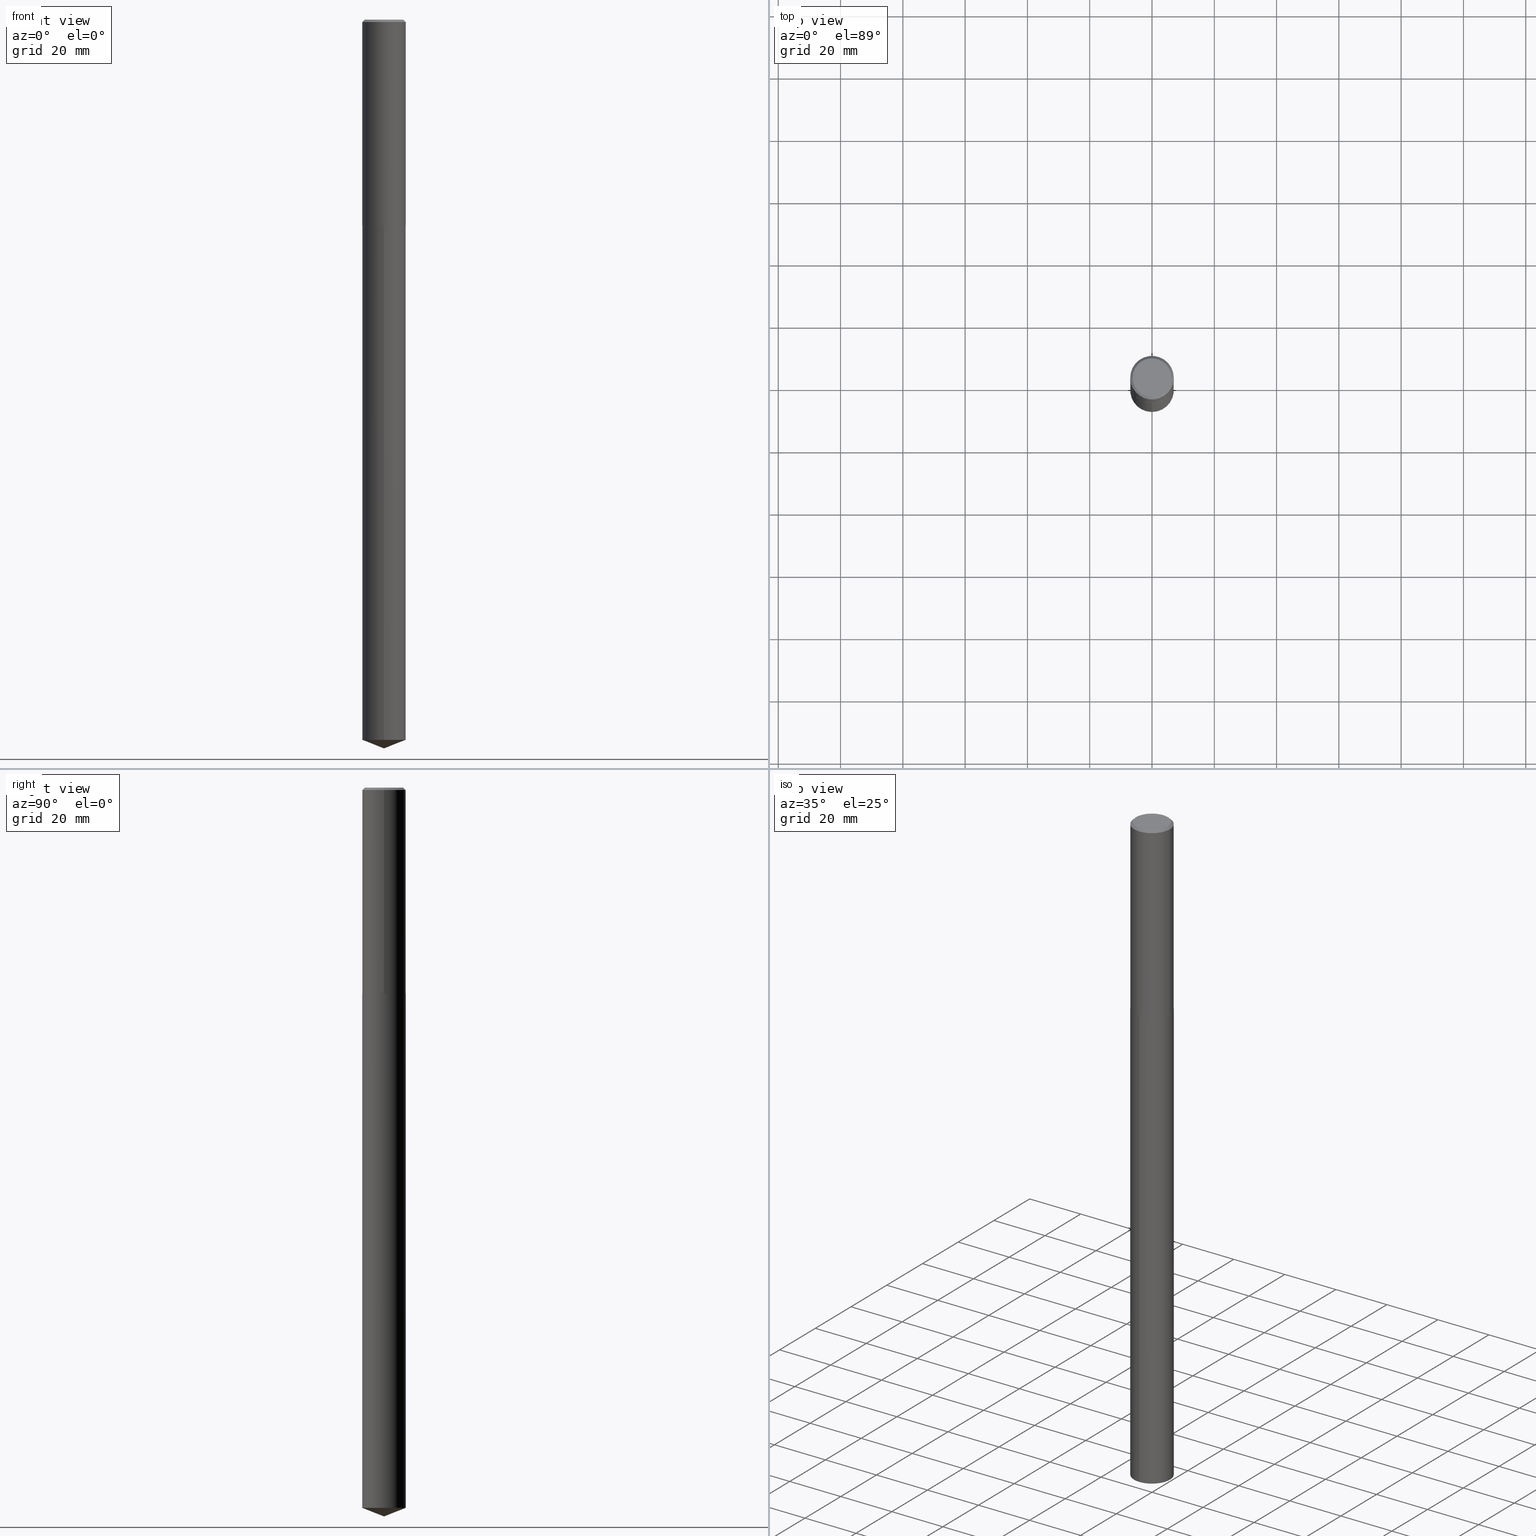
[diagram: canonical four-view strip — front | top / right | iso, engineering-drawing reading convention]
A machine part, canonical four-view strip (front | top / right | iso — engineering-drawing reading convention). The complete STEP part file that produces these views, byte-faithful:
ISO-10303-21;
HEADER;
FILE_DESCRIPTION (( 'STEP AP203' ),
    '1' );
FILE_NAME ('66805.STEP',
    '2024-04-23T12:51:53',
    ( '' ),
    ( '' ),
    'SwSTEP 2.0',
    'SolidWorks 2023',
    '' );
FILE_SCHEMA (( 'CONFIG_CONTROL_DESIGN' ));
ENDSEC;

DATA;
#1 = DIRECTION ( 'NONE',  ( 1.000000000000000000, -6.982962677686265922E-15, 0.000000000000000000 ) ) ;
#2 = DIRECTION ( 'NONE',  ( 1.000000000000000000, -6.982962677686265922E-15, 0.000000000000000000 ) ) ;
#3 = VERTEX_POINT ( 'NONE', #264 ) ;
#4 = CIRCLE ( 'NONE', #383, 0.2756000000000002892 ) ;
#5 = ORIENTED_EDGE ( 'NONE', *, *, #7, .F. ) ;
#6 = EDGE_CURVE ( 'NONE', #308, #381, #90, .T. ) ;
#7 = EDGE_CURVE ( 'NONE', #189, #349, #224, .T. ) ;
#8 = CYLINDRICAL_SURFACE ( 'NONE', #78, 0.2756000000000000116 ) ;
#9 = CARTESIAN_POINT ( 'NONE',  ( 6.355528880394550316E-29, -9.074010851519450181E-15, -2.598899999999999544 ) ) ;
#10 = CARTESIAN_POINT ( 'NONE',  ( 1.958255779754899698E-15, 0.2755999999999909633, -2.598900000000000432 ) ) ;
#11 = VERTEX_POINT ( 'NONE', #324 ) ;
#12 = DIRECTION ( 'NONE',  ( -6.982962677686265922E-15, -1.000000000000000000, 3.498627837350045243E-15 ) ) ;
#13 = CIRCLE ( 'NONE', #56, 0.2756000000000000116 ) ;
#14 = CARTESIAN_POINT ( 'NONE',  ( -0.2756000000000002892, -7.114009331095189722E-15, -2.598399999999999377 ) ) ;
#15 = EDGE_CURVE ( 'NONE', #308, #46, #214, .T. ) ;
#16 = ORIENTED_EDGE ( 'NONE', *, *, #212, .T. ) ;
#17 = ORIENTED_EDGE ( 'NONE', *, *, #71, .T. ) ;
#18 = PERSON_AND_ORGANIZATION_ROLE ( 'creator' ) ;
#19 = EDGE_LOOP ( 'NONE', ( #263, #327, #123, #91 ) ) ;
#20 = COORDINATED_UNIVERSAL_TIME_OFFSET ( 5, 0, .BEHIND. ) ;
#21 = ORIENTED_EDGE ( 'NONE', *, *, #217, .T. ) ;
#22 = DATE_TIME_ROLE ( 'classification_date' ) ;
#23 = VERTEX_POINT ( 'NONE', #293 ) ;
#24 = CALENDAR_DATE ( 2024, 23, 4 ) ;
#25 = AXIS2_PLACEMENT_3D ( 'NONE', #315, #152, #277 ) ;
#26 = CARTESIAN_POINT ( 'NONE',  ( 6.355528880394550316E-29, -9.074010851519450181E-15, -2.598899999999999544 ) ) ;
#27 = EDGE_CURVE ( 'NONE', #67, #11, #4, .T. ) ;
#28 = DIRECTION ( 'NONE',  ( 0.000000000000000000, 0.000000000000000000, 1.000000000000000000 ) ) ;
#29 = APPROVAL_ROLE ( '' ) ;
#30 = LINE ( 'NONE', #77, #96 ) ;
#31 = DIRECTION ( 'NONE',  ( 1.000000000000000000, -6.982962677686268288E-15, 0.000000000000000000 ) ) ;
#32 = CYLINDRICAL_SURFACE ( 'NONE', #390, 0.2756000000000001782 ) ;
#33 = DIRECTION ( 'NONE',  ( -2.445206291822063677E-29, 3.491857274352455641E-15, 1.000000000000000000 ) ) ;
#34 = DIRECTION ( 'NONE',  ( -2.445206291822063677E-29, 3.491857274352455641E-15, 1.000000000000000000 ) ) ;
#35 = CIRCLE ( 'NONE', #47, 0.2756000000000000116 ) ;
#36 = DIRECTION ( 'NONE',  ( 1.000000000000000000, -6.982962677686265922E-15, 4.876176775795935793E-29 ) ) ;
#37 = DIRECTION ( 'NONE',  ( 1.000000000000000000, -6.982962677686267499E-15, 0.000000000000000000 ) ) ;
#38 = PLANE ( 'NONE',  #251 ) ;
#39 = CARTESIAN_POINT ( 'NONE',  ( -1.179965205088274773E-46, 1.684677589683407840E-32, 4.825108388640571583E-18 ) ) ;
#40 = DIRECTION ( 'NONE',  ( -2.445206291822063677E-29, 3.491857274352455641E-15, 1.000000000000000000 ) ) ;
#41 = AXIS2_PLACEMENT_3D ( 'NONE', #140, #208, #36 ) ;
#42 = AXIS2_PLACEMENT_3D ( 'NONE', #87, #344, #31 ) ;
#43 = CARTESIAN_POINT ( 'NONE',  ( -0.2756000000000000116, 1.815395722131486248E-15, -0.03125000000000021511 ) ) ;
#44 = PRODUCT_DEFINITION_SHAPE ( 'NONE', 'NONE',  #325 ) ;
#45 = ORIENTED_EDGE ( 'NONE', *, *, #51, .F. ) ;
#46 = VERTEX_POINT ( 'NONE', #83 ) ;
#47 = AXIS2_PLACEMENT_3D ( 'NONE', #112, #210, #37 ) ;
#48 = CARTESIAN_POINT ( 'NONE',  ( -1.179965205088274773E-46, 1.684677589683407840E-32, 4.825108388640571583E-18 ) ) ;
#49 = DATE_AND_TIME ( #388, #69 ) ;
#50 = EDGE_LOOP ( 'NONE', ( #125, #205 ) ) ;
#51 = EDGE_CURVE ( 'NONE', #11, #381, #58, .T. ) ;
#52 = PERSON_AND_ORGANIZATION ( #200, #144 ) ;
#53 = FACE_OUTER_BOUND ( 'NONE', #19, .T. ) ;
#54 = FACE_OUTER_BOUND ( 'NONE', #147, .T. ) ;
#55 = DIRECTION ( 'NONE',  ( -1.000000000000000000, 6.982962677686267499E-15, 0.000000000000000000 ) ) ;
#56 = AXIS2_PLACEMENT_3D ( 'NONE', #209, #340, #280 ) ;
#57 = CARTESIAN_POINT ( 'NONE',  ( 6.354306145991456393E-29, -9.072265110850027889E-15, -2.598399999999999377 ) ) ;
#58 = LINE ( 'NONE', #197, #378 ) ;
#59 = ADVANCED_FACE ( 'NONE', ( #229 ), #32, .T. ) ;
#60 = EDGE_CURVE ( 'NONE', #23, #350, #226, .T. ) ;
#61 = DIRECTION ( 'NONE',  ( 2.438088387897960049E-29, -3.491481338843145188E-15, -1.000000000000000000 ) ) ;
#62 = DIRECTION ( 'NONE',  ( 1.000000000000000000, -6.982962677686266711E-15, 4.876118653798672988E-29 ) ) ;
#63 = VECTOR ( 'NONE', #118, 39.37007874015748143 ) ;
#64 = EDGE_LOOP ( 'NONE', ( #225, #310, #380, #21 ) ) ;
#65 = EDGE_CURVE ( 'NONE', #349, #321, #161, .T. ) ;
#66 = EDGE_LOOP ( 'NONE', ( #278, #355, #286, #295 ) ) ;
#67 = VERTEX_POINT ( 'NONE', #135 ) ;
#68 = AXIS2_PLACEMENT_3D ( 'NONE', #248, #370, #183 ) ;
#69 = LOCAL_TIME ( 8, 51, 53.00000000000000000, #109 ) ;
#70 = ORIENTED_EDGE ( 'NONE', *, *, #273, .T. ) ;
#71 = EDGE_CURVE ( 'NONE', #93, #189, #231, .T. ) ;
#72 = CARTESIAN_POINT ( 'NONE',  ( 1.958255779755059048E-15, 0.2755999999999682593, -9.104438272920521769 ) ) ;
#73 =( NAMED_UNIT ( * ) SI_UNIT ( $, .STERADIAN. ) SOLID_ANGLE_UNIT ( ) );
#74 = CALENDAR_DATE ( 2024, 23, 4 ) ;
#75 = AXIS2_PLACEMENT_3D ( 'NONE', #177, #40, #12 ) ;
#76 = PERSON_AND_ORGANIZATION ( #200, #144 ) ;
#77 = CARTESIAN_POINT ( 'NONE',  ( 0.2756000000000001782, -1.924504513970336137E-15, 1.343874319409360828E-29 ) ) ;
#78 = AXIS2_PLACEMENT_3D ( 'NONE', #375, #108, #89 ) ;
#79 = APPROVAL_PERSON_ORGANIZATION ( #301, #122, #29 ) ;
#80 = EDGE_CURVE ( 'NONE', #3, #381, #35, .T. ) ;
#81 = DIRECTION ( 'NONE',  ( 2.445468806185136597E-29, -3.491481338843145583E-15, -1.000000000000000000 ) ) ;
#82 = CARTESIAN_POINT ( 'NONE',  ( 7.642090019328603538E-31, -1.091087918388490390E-16, -0.03125000000000021511 ) ) ;
#83 = CARTESIAN_POINT ( 'NONE',  ( 0.2443500000000000116, -1.838112362890078477E-15, 4.825108388652965328E-18 ) ) ;
#84 = FACE_OUTER_BOUND ( 'NONE', #165, .T. ) ;
#85 = CARTESIAN_POINT ( 'NONE',  ( 2.252768556655667093E-28, -3.217048106860917540E-14, -9.212999999999999190 ) ) ;
#86 = AXIS2_PLACEMENT_3D ( 'NONE', #360, #352, #192 ) ;
#87 = CARTESIAN_POINT ( 'NONE',  ( 6.355528880394549195E-29, -9.074010851519448604E-15, -2.598899999999999100 ) ) ;
#88 = ORIENTED_EDGE ( 'NONE', *, *, #247, .F. ) ;
#89 = DIRECTION ( 'NONE',  ( -6.982962677686265922E-15, -1.000000000000000000, 3.964946289788480896E-15 ) ) ;
#90 = LINE ( 'NONE', #43, #330 ) ;
#91 = ORIENTED_EDGE ( 'NONE', *, *, #273, .F. ) ;
#92 = VERTEX_POINT ( 'NONE', #72 ) ;
#93 = VERTEX_POINT ( 'NONE', #85 ) ;
#94 = ORIENTED_EDGE ( 'NONE', *, *, #362, .T. ) ;
#95 = ADVANCED_FACE ( 'NONE', ( #184 ), #357, .T. ) ;
#96 = VECTOR ( 'NONE', #385, 39.37007874015748143 ) ;
#97 = APPLICATION_CONTEXT ( 'configuration controlled 3d designs of mechanical parts and assemblies' ) ;
#98 =( NAMED_UNIT ( * ) PLANE_ANGLE_UNIT ( ) SI_UNIT ( $, .RADIAN. ) );
#99 = CARTESIAN_POINT ( 'NONE',  ( 0.000000000000000000, 0.000000000000000000, 0.000000000000000000 ) ) ;
#100 = APPLICATION_PROTOCOL_DEFINITION ( 'international standard', 'config_control_design', 1994, #97 ) ;
#101 = ADVANCED_FACE ( 'NONE', ( #305 ), #336, .F. ) ;
#102 = DATE_AND_TIME ( #389, #252 ) ;
#103 = APPROVAL_PERSON_ORGANIZATION ( #328, #230, #223 ) ;
#104 = DIRECTION ( 'NONE',  ( 1.000000000000000000, 0.000000000000000000, 0.000000000000000000 ) ) ;
#105 = DIRECTION ( 'NONE',  ( -6.982962677686265922E-15, -1.000000000000000000, 3.964946289788480896E-15 ) ) ;
#106 = APPROVAL ( #232, 'UNSPECIFIED' ) ;
#107 = ADVANCED_FACE ( 'NONE', ( #84 ), #38, .F. ) ;
#108 = DIRECTION ( 'NONE',  ( -2.445206291822063677E-29, 3.491857274352455641E-15, 1.000000000000000000 ) ) ;
#109 = COORDINATED_UNIVERSAL_TIME_OFFSET ( 5, 0, .BEHIND. ) ;
#110 = CARTESIAN_POINT ( 'NONE',  ( 6.354306145991456393E-29, -9.072265110850027889E-15, -2.598399999999999377 ) ) ;
#111 = ORIENTED_EDGE ( 'NONE', *, *, #272, .F. ) ;
#112 = CARTESIAN_POINT ( 'NONE',  ( 7.642090019328603538E-31, -1.091087918388490390E-16, -0.03125000000000021511 ) ) ;
#113 = LINE ( 'NONE', #249, #311 ) ;
#114 = DIRECTION ( 'NONE',  ( -2.445206291822063957E-29, 3.491857274352455641E-15, 1.000000000000000000 ) ) ;
#115 = CONICAL_SURFACE ( 'NONE', #171, 0.2756000000000000116, 0.7853981633974449483 ) ;
#116 = APPROVAL_PERSON_ORGANIZATION ( #356, #106, #130 ) ;
#117 = PLANE ( 'NONE',  #143 ) ;
#118 = DIRECTION ( 'NONE',  ( 6.611014441532056334E-15, 0.9304175679820257949, 0.3665012267242942490 ) ) ;
#119 = ORIENTED_EDGE ( 'NONE', *, *, #387, .F. ) ;
#120 = FACE_OUTER_BOUND ( 'NONE', #290, .T. ) ;
#121 = DIRECTION ( 'NONE',  ( -1.000000000000000000, 6.982962677686265922E-15, -4.876176775795935793E-29 ) ) ;
#122 = APPROVAL ( #201, 'UNSPECIFIED' ) ;
#123 = ORIENTED_EDGE ( 'NONE', *, *, #170, .T. ) ;
#124 = ADVANCED_FACE ( 'NONE', ( #282 ), #117, .F. ) ;
#125 = ORIENTED_EDGE ( 'NONE', *, *, #294, .F. ) ;
#126 = DIRECTION ( 'NONE',  ( -0.7071067811865451302, 2.468850131082231817E-15, -0.7071067811865499042 ) ) ;
#127 = PRODUCT_RELATED_PRODUCT_CATEGORY ( 'detail', '', ( #289 ) ) ;
#128 = APPROVAL_DATE_TIME ( #191, #106 ) ;
#129 = ORIENTED_EDGE ( 'NONE', *, *, #7, .T. ) ;
#130 = APPROVAL_ROLE ( '' ) ;
#131 = ORIENTED_EDGE ( 'NONE', *, *, #272, .T. ) ;
#132 = VECTOR ( 'NONE', #218, 39.37007874015748143 ) ;
#133 = CC_DESIGN_SECURITY_CLASSIFICATION ( #204, ( #215 ) ) ;
#134 =( CONVERSION_BASED_UNIT ( 'INCH', #268 ) LENGTH_UNIT ( ) NAMED_UNIT ( #142 ) );
#135 = CARTESIAN_POINT ( 'NONE',  ( 0.2756000000000002892, -1.099676962482036442E-14, -2.598399999999999377 ) ) ;
#136 = PERSON_AND_ORGANIZATION_ROLE ( 'classification_officer' ) ;
#137 = MECHANICAL_CONTEXT ( 'NONE', #176, 'mechanical' ) ;
#138 = DIRECTION ( 'NONE',  ( -2.445468806185136597E-29, 3.491481338843145583E-15, 1.000000000000000000 ) ) ;
#139 = EDGE_CURVE ( 'NONE', #46, #3, #219, .T. ) ;
#140 = CARTESIAN_POINT ( 'NONE',  ( 9.959864516775654404E-29, -3.912397074177360037E-15, -2.598899999999999544 ) ) ;
#141 = COORDINATED_UNIVERSAL_TIME_OFFSET ( 5, 0, .BEHIND. ) ;
#142 = DIMENSIONAL_EXPONENTS ( 1.000000000000000000, 0.000000000000000000, 0.000000000000000000, 0.000000000000000000, 0.000000000000000000, 0.000000000000000000, 0.000000000000000000 ) ;
#143 = AXIS2_PLACEMENT_3D ( 'NONE', #253, #61, #121 ) ;
#144 = ORGANIZATION ( 'UNSPECIFIED', 'UNSPECIFIED', '' ) ;
#145 = PERSON_AND_ORGANIZATION_ROLE ( 'creator' ) ;
#146 = CARTESIAN_POINT ( 'NONE',  ( -0.2443500000000000116, 1.760841326212062881E-15, 4.825108388628448239E-18 ) ) ;
#147 = EDGE_LOOP ( 'NONE', ( #111, #379, #129, #316 ) ) ;
#148 = LINE ( 'NONE', #339, #63 ) ;
#149 = CONICAL_SURFACE ( 'NONE', #188, 0.2756000000000000116, 0.7853981633974449483 ) ;
#150 = DIRECTION ( 'NONE',  ( -2.445468806185136597E-29, 3.491481338843145583E-15, 1.000000000000000000 ) ) ;
#151 = DIRECTION ( 'NONE',  ( 2.445206291822063396E-29, -3.491857274352455641E-15, -1.000000000000000000 ) ) ;
#152 = DIRECTION ( 'NONE',  ( -2.445468806185136597E-29, 3.491481338843145583E-15, 1.000000000000000000 ) ) ;
#153 = ORIENTED_EDGE ( 'NONE', *, *, #212, .F. ) ;
#154 = CC_DESIGN_APPROVAL ( #122, ( #325 ) ) ;
#155 = CARTESIAN_POINT ( 'NONE',  ( 0.2756000000000000116, -1.999862040024683603E-15, -0.03125000000000021511 ) ) ;
#156 = ADVANCED_FACE ( 'NONE', ( #120 ), #234, .T. ) ;
#157 = ORIENTED_EDGE ( 'NONE', *, *, #246, .F. ) ;
#158 = ORIENTED_EDGE ( 'NONE', *, *, #65, .T. ) ;
#159 = DATE_AND_TIME ( #164, #221 ) ;
#160 = ORIENTED_EDGE ( 'NONE', *, *, #51, .T. ) ;
#161 = CIRCLE ( 'NONE', #202, 0.2756000000000000116 ) ;
#162 = DATE_AND_TIME ( #74, #304 ) ;
#163 = EDGE_LOOP ( 'NONE', ( #88, #376, #320, #261 ) ) ;
#164 = CALENDAR_DATE ( 2024, 23, 4 ) ;
#165 = EDGE_LOOP ( 'NONE', ( #158, #94 ) ) ;
#166 =( LENGTH_UNIT ( ) NAMED_UNIT ( * ) SI_UNIT ( $, .METRE. ) );
#167 =( GEOMETRIC_REPRESENTATION_CONTEXT ( 3 ) GLOBAL_UNCERTAINTY_ASSIGNED_CONTEXT ( ( #313 ) ) GLOBAL_UNIT_ASSIGNED_CONTEXT ( ( #134, #98, #73 ) ) REPRESENTATION_CONTEXT ( 'NONE', 'WORKASPACE' ) );
#168 = MANIFOLD_SOLID_BREP ( 'Body-Move/Copy2[2]', #341 ) ;
#169 = CARTESIAN_POINT ( 'NONE',  ( 6.355528880394550316E-29, -9.074010851519450181E-15, -2.598899999999999544 ) ) ;
#170 = EDGE_CURVE ( 'NONE', #350, #67, #113, .T. ) ;
#171 = AXIS2_PLACEMENT_3D ( 'NONE', #82, #81, #283 ) ;
#172 = CARTESIAN_POINT ( 'NONE',  ( 6.355528880394550316E-29, -9.074010851519450181E-15, -2.598899999999999544 ) ) ;
#173 = CIRCLE ( 'NONE', #373, 0.2756000000000002892 ) ;
#174 = FACE_OUTER_BOUND ( 'NONE', #163, .T. ) ;
#175 = LINE ( 'NONE', #14, #303 ) ;
#176 = APPLICATION_CONTEXT ( 'configuration controlled 3d designs of mechanical parts and assemblies' ) ;
#177 = CARTESIAN_POINT ( 'NONE',  ( -7.373959642982827572E-28, 1.053051917908338363E-13, 30.15707874015748402 ) ) ;
#178 = DIRECTION ( 'NONE',  ( -0.7071067811866199593, 7.493145998870616062E-15, 0.7071067811864750752 ) ) ;
#179 = CARTESIAN_POINT ( 'NONE',  ( 2.252768556655666645E-28, -3.217048106860917540E-14, -9.212999999999999190 ) ) ;
#180 = CONICAL_SURFACE ( 'NONE', #68, 0.2756000000000002892, 0.7853981633975507526 ) ;
#181 = CONICAL_SURFACE ( 'NONE', #342, 0.2756000000000002892, 0.7853981633975507526 ) ;
#182 = ADVANCED_FACE ( 'NONE', ( #227 ), #180, .T. ) ;
#183 = DIRECTION ( 'NONE',  ( 1.000000000000000000, -6.982962677686265922E-15, 0.000000000000000000 ) ) ;
#184 = FACE_OUTER_BOUND ( 'NONE', #193, .T. ) ;
#185 = CC_DESIGN_PERSON_AND_ORGANIZATION_ASSIGNMENT ( #326, #136, ( #204 ) ) ;
#186 = CIRCLE ( 'NONE', #240, 0.2443500000000000116 ) ;
#187 = ORIENTED_EDGE ( 'NONE', *, *, #65, .F. ) ;
#188 = AXIS2_PLACEMENT_3D ( 'NONE', #270, #332, #55 ) ;
#189 = VERTEX_POINT ( 'NONE', #314 ) ;
#190 = ORIENTED_EDGE ( 'NONE', *, *, #260, .F. ) ;
#191 = DATE_AND_TIME ( #24, #318 ) ;
#192 = DIRECTION ( 'NONE',  ( 1.000000000000000000, -6.982962677686265922E-15, 4.876176775795935793E-29 ) ) ;
#193 = EDGE_LOOP ( 'NONE', ( #322, #160, #291, #119 ) ) ;
#194 = CLOSED_SHELL ( 'NONE', ( #245, #156, #386, #347, #107 ) ) ;
#195 = ORIENTED_EDGE ( 'NONE', *, *, #247, .T. ) ;
#196 = ADVANCED_FACE ( 'NONE', ( #174 ), #115, .T. ) ;
#197 = CARTESIAN_POINT ( 'NONE',  ( -0.2756000000000001782, 1.958255779754837378E-15, -1.355658510874252848E-29 ) ) ;
#198 = PERSON_AND_ORGANIZATION ( #200, #144 ) ;
#199 = CC_DESIGN_DATE_AND_TIME_ASSIGNMENT ( #159, #22, ( #204 ) ) ;
#200 = PERSON ( 'UNSPECIFIED', 'UNSPECIFIED', 'UNSPECIFIED', ('UNSPECIFIED'), ('UNSPECIFIED'), ('UNSPECIFIED') ) ;
#201 = APPROVAL_STATUS ( 'not_yet_approved' ) ;
#202 = AXIS2_PLACEMENT_3D ( 'NONE', #26, #34, #207 ) ;
#203 = DIRECTION ( 'NONE',  ( -6.982962677686265922E-15, -1.000000000000000000, 3.498627837350045243E-15 ) ) ;
#204 = SECURITY_CLASSIFICATION ( '', '', #358 ) ;
#205 = ORIENTED_EDGE ( 'NONE', *, *, #60, .F. ) ;
#206 = DIRECTION ( 'NONE',  ( 1.000000000000000000, -6.982962677686266711E-15, 4.876118653798672988E-29 ) ) ;
#207 = DIRECTION ( 'NONE',  ( -6.982962677686265922E-15, -1.000000000000000000, 3.964946289788480896E-15 ) ) ;
#208 = DIRECTION ( 'NONE',  ( -2.438088387897960049E-29, 3.491481338843145188E-15, 1.000000000000000000 ) ) ;
#209 = CARTESIAN_POINT ( 'NONE',  ( 2.226291199702905030E-28, -3.179042199339528654E-14, -9.104438272920521769 ) ) ;
#210 = DIRECTION ( 'NONE',  ( -2.445468806185136597E-29, 3.491481338843145583E-15, 1.000000000000000000 ) ) ;
#211 = EDGE_CURVE ( 'NONE', #23, #11, #175, .T. ) ;
#212 = EDGE_CURVE ( 'NONE', #189, #92, #13, .T. ) ;
#213 = FACE_OUTER_BOUND ( 'NONE', #256, .T. ) ;
#214 = CIRCLE ( 'NONE', #269, 0.2443500000000000116 ) ;
#215 = PRODUCT_DEFINITION_FORMATION_WITH_SPECIFIED_SOURCE ( 'ANY', '', #289, .NOT_KNOWN. ) ;
#216 = CC_DESIGN_PERSON_AND_ORGANIZATION_ASSIGNMENT ( #300, #18, ( #215 ) ) ;
#217 = EDGE_CURVE ( 'NONE', #381, #3, #284, .T. ) ;
#218 = DIRECTION ( 'NONE',  ( -2.445206291822063957E-29, 3.491857274352455641E-15, 1.000000000000000000 ) ) ;
#219 = LINE ( 'NONE', #155, #372 ) ;
#220 = ORIENTED_EDGE ( 'NONE', *, *, #15, .T. ) ;
#221 = LOCAL_TIME ( 8, 51, 53.00000000000000000, #292 ) ;
#222 = EDGE_LOOP ( 'NONE', ( #220, #195 ) ) ;
#223 = APPROVAL_ROLE ( '' ) ;
#224 = LINE ( 'NONE', #353, #132 ) ;
#225 = ORIENTED_EDGE ( 'NONE', *, *, #139, .F. ) ;
#226 = CIRCLE ( 'NONE', #257, 0.2751000000000005663 ) ;
#227 = FACE_OUTER_BOUND ( 'NONE', #66, .T. ) ;
#228 = PERSON_AND_ORGANIZATION_ROLE ( 'design_supplier' ) ;
#229 = FACE_OUTER_BOUND ( 'NONE', #288, .T. ) ;
#230 = APPROVAL ( #361, 'UNSPECIFIED' ) ;
#231 = LINE ( 'NONE', #179, #274 ) ;
#232 = APPROVAL_STATUS ( 'not_yet_approved' ) ;
#233 = CARTESIAN_POINT ( 'NONE',  ( -7.373959642982827572E-28, 1.053051917908338363E-13, 30.15707874015748402 ) ) ;
#234 = CONICAL_SURFACE ( 'NONE', #75, 99.94676754583879585, 1.195550537616115516 ) ;
#235 = AXIS2_PLACEMENT_3D ( 'NONE', #172, #359, #302 ) ;
#236 = CC_DESIGN_PERSON_AND_ORGANIZATION_ASSIGNMENT ( #198, #145, ( #325 ) ) ;
#237 = APPROVAL_DATE_TIME ( #102, #122 ) ;
#238 = DIRECTION ( 'NONE',  ( -2.445468806185136597E-29, 3.491481338843145583E-15, 1.000000000000000000 ) ) ;
#239 = DIRECTION ( 'NONE',  ( -2.445206291822063677E-29, 3.491857274352455641E-15, 1.000000000000000000 ) ) ;
#240 = AXIS2_PLACEMENT_3D ( 'NONE', #39, #150, #206 ) ;
#241 = CARTESIAN_POINT ( 'NONE',  ( 2.226291199702905030E-28, -3.179042199339528654E-14, -9.104438272920521769 ) ) ;
#242 = DIRECTION ( 'NONE',  ( 1.000000000000000000, -6.982962677686268288E-15, 0.000000000000000000 ) ) ;
#243 = ORIENTED_EDGE ( 'NONE', *, *, #71, .F. ) ;
#244 = CC_DESIGN_DATE_AND_TIME_ASSIGNMENT ( #49, #296, ( #325 ) ) ;
#245 = ADVANCED_FACE ( 'NONE', ( #213 ), #8, .T. ) ;
#246 = EDGE_CURVE ( 'NONE', #92, #189, #334, .T. ) ;
#247 = EDGE_CURVE ( 'NONE', #46, #308, #186, .T. ) ;
#248 = CARTESIAN_POINT ( 'NONE',  ( 6.354306145991456393E-29, -9.072265110850027889E-15, -2.598399999999999377 ) ) ;
#249 = CARTESIAN_POINT ( 'NONE',  ( 0.2756000000000002892, -1.099676962482036442E-14, -2.598399999999999377 ) ) ;
#250 = DIRECTION ( 'NONE',  ( -2.445468806185136597E-29, 3.491481338843145583E-15, 1.000000000000000000 ) ) ;
#251 = AXIS2_PLACEMENT_3D ( 'NONE', #9, #151, #345 ) ;
#252 = LOCAL_TIME ( 8, 51, 53.00000000000000000, #141 ) ;
#253 = CARTESIAN_POINT ( 'NONE',  ( -5.899826025441373866E-47, 8.423387948417039198E-33, 2.412554194320285792E-18 ) ) ;
#254 = ORIENTED_EDGE ( 'NONE', *, *, #217, .F. ) ;
#255 = CC_DESIGN_PERSON_AND_ORGANIZATION_ASSIGNMENT ( #76, #267, ( #289 ) ) ;
#256 = EDGE_LOOP ( 'NONE', ( #16, #131, #187, #5 ) ) ;
#257 = AXIS2_PLACEMENT_3D ( 'NONE', #298, #369, #242 ) ;
#258 = ORIENTED_EDGE ( 'NONE', *, *, #387, .T. ) ;
#259 = ADVANCED_BREP_SHAPE_REPRESENTATION ( '66805', ( #319, #168, #384 ), #167 ) ;
#260 = EDGE_CURVE ( 'NONE', #93, #92, #148, .T. ) ;
#261 = ORIENTED_EDGE ( 'NONE', *, *, #6, .F. ) ;
#262 = SHAPE_DEFINITION_REPRESENTATION ( #44, #259 ) ;
#263 = ORIENTED_EDGE ( 'NONE', *, *, #211, .F. ) ;
#264 = CARTESIAN_POINT ( 'NONE',  ( 0.2756000000000000116, -2.033613305809184449E-15, -0.03125000000000021511 ) ) ;
#265 = CC_DESIGN_APPROVAL ( #230, ( #215 ) ) ;
#266 = DIRECTION ( 'NONE',  ( -2.445468806185136597E-29, 3.491481338843145583E-15, 1.000000000000000000 ) ) ;
#267 = PERSON_AND_ORGANIZATION_ROLE ( 'design_owner' ) ;
#268 = LENGTH_MEASURE_WITH_UNIT ( LENGTH_MEASURE( 0.02539999999999999897 ), #166 );
#269 = AXIS2_PLACEMENT_3D ( 'NONE', #48, #346, #62 ) ;
#270 = CARTESIAN_POINT ( 'NONE',  ( 7.642090019328603538E-31, -1.091087918388490390E-16, -0.03125000000000021511 ) ) ;
#271 = CARTESIAN_POINT ( 'NONE',  ( 1.958255779755059837E-15, 0.2755999999999909633, -2.598900000000000432 ) ) ;
#272 = EDGE_CURVE ( 'NONE', #92, #321, #309, .T. ) ;
#273 = EDGE_CURVE ( 'NONE', #11, #67, #173, .T. ) ;
#274 = VECTOR ( 'NONE', #275, 39.37007874015748143 ) ;
#275 = DIRECTION ( 'NONE',  ( -6.497071151882109581E-15, -0.9304175679820230194, 0.3665012267243007993 ) ) ;
#276 = CIRCLE ( 'NONE', #42, 0.2751000000000005663 ) ;
#277 = DIRECTION ( 'NONE',  ( 1.000000000000000000, -6.982962677686267499E-15, 0.000000000000000000 ) ) ;
#278 = ORIENTED_EDGE ( 'NONE', *, *, #294, .T. ) ;
#279 = CC_DESIGN_PERSON_AND_ORGANIZATION_ASSIGNMENT ( #52, #228, ( #215 ) ) ;
#280 = DIRECTION ( 'NONE',  ( -6.982962677686265922E-15, -1.000000000000000000, 3.964946289788480896E-15 ) ) ;
#281 = DIRECTION ( 'NONE',  ( 0.7071067811866199593, -2.468850131083015945E-15, 0.7071067811864750752 ) ) ;
#282 = FACE_OUTER_BOUND ( 'NONE', #222, .T. ) ;
#283 = DIRECTION ( 'NONE',  ( -1.000000000000000000, 6.982962677686267499E-15, 0.000000000000000000 ) ) ;
#284 = CIRCLE ( 'NONE', #25, 0.2756000000000000116 ) ;
#285 = AXIS2_PLACEMENT_3D ( 'NONE', #233, #239, #203 ) ;
#286 = ORIENTED_EDGE ( 'NONE', *, *, #27, .F. ) ;
#287 = DIRECTION ( 'NONE',  ( 0.7071067811865451302, -7.319954787623248157E-15, -0.7071067811865499042 ) ) ;
#288 = EDGE_LOOP ( 'NONE', ( #45, #70, #258, #254 ) ) ;
#289 = PRODUCT ( '66805', '66805', '', ( #137 ) ) ;
#290 = EDGE_LOOP ( 'NONE', ( #243, #377, #153 ) ) ;
#291 = ORIENTED_EDGE ( 'NONE', *, *, #80, .F. ) ;
#292 = COORDINATED_UNIVERSAL_TIME_OFFSET ( 5, 0, .BEHIND. ) ;
#293 = CARTESIAN_POINT ( 'NONE',  ( -0.2751000000000005663, -7.116658558269298556E-15, -2.598899999999999100 ) ) ;
#294 = EDGE_CURVE ( 'NONE', #350, #23, #276, .T. ) ;
#295 = ORIENTED_EDGE ( 'NONE', *, *, #170, .F. ) ;
#296 = DATE_TIME_ROLE ( 'creation_date' ) ;
#297 = FACE_OUTER_BOUND ( 'NONE', #64, .T. ) ;
#298 = CARTESIAN_POINT ( 'NONE',  ( 6.355528880394549195E-29, -9.074010851519448604E-15, -2.598899999999999100 ) ) ;
#299 = VECTOR ( 'NONE', #114, 39.37007874015748143 ) ;
#300 = PERSON_AND_ORGANIZATION ( #200, #144 ) ;
#301 = PERSON_AND_ORGANIZATION ( #200, #144 ) ;
#302 = DIRECTION ( 'NONE',  ( -6.982962677686265922E-15, -1.000000000000000000, 3.964946289788480896E-15 ) ) ;
#303 = VECTOR ( 'NONE', #178, 39.37007874015748143 ) ;
#304 = LOCAL_TIME ( 8, 51, 53.00000000000000000, #382 ) ;
#305 = FACE_OUTER_BOUND ( 'NONE', #50, .T. ) ;
#306 = DIRECTION ( 'NONE',  ( -2.445206291822063677E-29, 3.491857274352455641E-15, 1.000000000000000000 ) ) ;
#307 = DIRECTION ( 'NONE',  ( -2.445468806185136877E-29, 3.491481338843145188E-15, 1.000000000000000000 ) ) ;
#308 = VERTEX_POINT ( 'NONE', #146 ) ;
#309 = LINE ( 'NONE', #10, #299 ) ;
#310 = ORIENTED_EDGE ( 'NONE', *, *, #15, .F. ) ;
#311 = VECTOR ( 'NONE', #281, 39.37007874015748143 ) ;
#312 = CONICAL_SURFACE ( 'NONE', #285, 99.94676754583879585, 1.195550537616115516 ) ;
#313 = UNCERTAINTY_MEASURE_WITH_UNIT (LENGTH_MEASURE( 1.000000000000000082E-05 ), #134, 'distance_accuracy_value', 'NONE');
#314 = CARTESIAN_POINT ( 'NONE',  ( -1.924504513970112495E-15, -0.2756000000000318195, -9.104438272920519992 ) ) ;
#315 = CARTESIAN_POINT ( 'NONE',  ( 7.642090019328603538E-31, -1.091087918388490390E-16, -0.03125000000000021511 ) ) ;
#316 = ORIENTED_EDGE ( 'NONE', *, *, #362, .F. ) ;
#317 = AXIS2_PLACEMENT_3D ( 'NONE', #241, #33, #343 ) ;
#318 = LOCAL_TIME ( 8, 51, 53.00000000000000000, #20 ) ;
#319 = MANIFOLD_SOLID_BREP ( 'Body-Move/Copy2[1]', #194 ) ;
#320 = ORIENTED_EDGE ( 'NONE', *, *, #80, .T. ) ;
#321 = VERTEX_POINT ( 'NONE', #271 ) ;
#322 = ORIENTED_EDGE ( 'NONE', *, *, #27, .T. ) ;
#323 = AXIS2_PLACEMENT_3D ( 'NONE', #169, #306, #105 ) ;
#324 = CARTESIAN_POINT ( 'NONE',  ( -0.2756000000000002892, -7.114009331095189722E-15, -2.598399999999999377 ) ) ;
#325 = PRODUCT_DEFINITION ( 'UNKNOWN', '', #215, #365 ) ;
#326 = PERSON_AND_ORGANIZATION ( #200, #144 ) ;
#327 = ORIENTED_EDGE ( 'NONE', *, *, #60, .T. ) ;
#328 = PERSON_AND_ORGANIZATION ( #200, #144 ) ;
#329 = APPLICATION_PROTOCOL_DEFINITION ( 'international standard', 'config_control_design', 1994, #176 ) ;
#330 = VECTOR ( 'NONE', #126, 39.37007874015748143 ) ;
#331 = CARTESIAN_POINT ( 'NONE',  ( -0.2756000000000000116, -2.632431171589600722E-15, -0.03125000000000021511 ) ) ;
#332 = DIRECTION ( 'NONE',  ( 2.445468806185136597E-29, -3.491481338843145583E-15, -1.000000000000000000 ) ) ;
#333 = CARTESIAN_POINT ( 'NONE',  ( -1.924504513970271451E-15, -0.2756000000000091155, -2.598899999999998212 ) ) ;
#334 = CIRCLE ( 'NONE', #317, 0.2756000000000000116 ) ;
#335 = ADVANCED_FACE ( 'NONE', ( #297 ), #149, .T. ) ;
#336 = PLANE ( 'NONE',  #41 ) ;
#337 = FACE_OUTER_BOUND ( 'NONE', #338, .T. ) ;
#338 = EDGE_LOOP ( 'NONE', ( #190, #17, #157 ) ) ;
#339 = CARTESIAN_POINT ( 'NONE',  ( 2.252906202874245128E-28, -3.216852703101887881E-14, -9.212999999999999190 ) ) ;
#340 = DIRECTION ( 'NONE',  ( -2.445206291822063677E-29, 3.491857274352455641E-15, 1.000000000000000000 ) ) ;
#341 = CLOSED_SHELL ( 'NONE', ( #196, #95, #182, #101, #371, #59, #335, #124 ) ) ;
#342 = AXIS2_PLACEMENT_3D ( 'NONE', #367, #238, #1 ) ;
#343 = DIRECTION ( 'NONE',  ( -6.982962677686265922E-15, -1.000000000000000000, 3.964946289788480896E-15 ) ) ;
#344 = DIRECTION ( 'NONE',  ( -2.445468806185136597E-29, 3.491481338843145583E-15, 1.000000000000000000 ) ) ;
#345 = DIRECTION ( 'NONE',  ( 6.982962677686265922E-15, 1.000000000000000000, -3.491857274352455641E-15 ) ) ;
#346 = DIRECTION ( 'NONE',  ( -2.445468806185136597E-29, 3.491481338843145583E-15, 1.000000000000000000 ) ) ;
#347 = ADVANCED_FACE ( 'NONE', ( #54 ), #363, .T. ) ;
#348 = CIRCLE ( 'NONE', #235, 0.2756000000000000116 ) ;
#349 = VERTEX_POINT ( 'NONE', #333 ) ;
#350 = VERTEX_POINT ( 'NONE', #364 ) ;
#351 = APPROVAL_DATE_TIME ( #162, #230 ) ;
#352 = DIRECTION ( 'NONE',  ( -2.445468806185136597E-29, 3.491481338843145583E-15, 1.000000000000000000 ) ) ;
#353 = CARTESIAN_POINT ( 'NONE',  ( -1.924504513970271451E-15, -0.2756000000000091155, -2.598899999999998212 ) ) ;
#354 = CC_DESIGN_APPROVAL ( #106, ( #204 ) ) ;
#355 = ORIENTED_EDGE ( 'NONE', *, *, #211, .T. ) ;
#356 = PERSON_AND_ORGANIZATION ( #200, #144 ) ;
#357 = CYLINDRICAL_SURFACE ( 'NONE', #86, 0.2756000000000001782 ) ;
#358 = SECURITY_CLASSIFICATION_LEVEL ( 'unclassified' ) ;
#359 = DIRECTION ( 'NONE',  ( -2.445206291822063677E-29, 3.491857274352455641E-15, 1.000000000000000000 ) ) ;
#360 = CARTESIAN_POINT ( 'NONE',  ( 0.000000000000000000, 0.000000000000000000, 0.000000000000000000 ) ) ;
#361 = APPROVAL_STATUS ( 'not_yet_approved' ) ;
#362 = EDGE_CURVE ( 'NONE', #321, #349, #348, .T. ) ;
#363 = CYLINDRICAL_SURFACE ( 'NONE', #323, 0.2756000000000000116 ) ;
#364 = CARTESIAN_POINT ( 'NONE',  ( 0.2751000000000005663, -1.099502388415094371E-14, -2.598899999999999100 ) ) ;
#365 = DESIGN_CONTEXT ( 'detailed design', #97, 'design' ) ;
#366 = CARTESIAN_POINT ( 'NONE',  ( 0.000000000000000000, 0.000000000000000000, 0.000000000000000000 ) ) ;
#367 = CARTESIAN_POINT ( 'NONE',  ( 6.354306145991456393E-29, -9.072265110850027889E-15, -2.598399999999999377 ) ) ;
#368 = DIRECTION ( 'NONE',  ( 1.000000000000000000, -6.982962677686265922E-15, 4.876176775795935793E-29 ) ) ;
#369 = DIRECTION ( 'NONE',  ( -2.445468806185136597E-29, 3.491481338843145583E-15, 1.000000000000000000 ) ) ;
#370 = DIRECTION ( 'NONE',  ( -2.445468806185136597E-29, 3.491481338843145583E-15, 1.000000000000000000 ) ) ;
#371 = ADVANCED_FACE ( 'NONE', ( #53 ), #181, .T. ) ;
#372 = VECTOR ( 'NONE', #287, 39.37007874015748143 ) ;
#373 = AXIS2_PLACEMENT_3D ( 'NONE', #57, #250, #374 ) ;
#374 = DIRECTION ( 'NONE',  ( 1.000000000000000000, -6.982962677686265922E-15, 0.000000000000000000 ) ) ;
#375 = CARTESIAN_POINT ( 'NONE',  ( 6.355528880394550316E-29, -9.074010851519450181E-15, -2.598899999999999544 ) ) ;
#376 = ORIENTED_EDGE ( 'NONE', *, *, #139, .T. ) ;
#377 = ORIENTED_EDGE ( 'NONE', *, *, #260, .T. ) ;
#378 = VECTOR ( 'NONE', #307, 39.37007874015748143 ) ;
#379 = ORIENTED_EDGE ( 'NONE', *, *, #246, .T. ) ;
#380 = ORIENTED_EDGE ( 'NONE', *, *, #6, .T. ) ;
#381 = VERTEX_POINT ( 'NONE', #331 ) ;
#382 = COORDINATED_UNIVERSAL_TIME_OFFSET ( 5, 0, .BEHIND. ) ;
#383 = AXIS2_PLACEMENT_3D ( 'NONE', #110, #266, #2 ) ;
#384 = AXIS2_PLACEMENT_3D ( 'NONE', #366, #28, #104 ) ;
#385 = DIRECTION ( 'NONE',  ( -2.445468806185136877E-29, 3.491481338843145188E-15, 1.000000000000000000 ) ) ;
#386 = ADVANCED_FACE ( 'NONE', ( #337 ), #312, .T. ) ;
#387 = EDGE_CURVE ( 'NONE', #67, #3, #30, .T. ) ;
#388 = CALENDAR_DATE ( 2024, 23, 4 ) ;
#389 = CALENDAR_DATE ( 2024, 23, 4 ) ;
#390 = AXIS2_PLACEMENT_3D ( 'NONE', #99, #138, #368 ) ;
ENDSEC;
END-ISO-10303-21;
